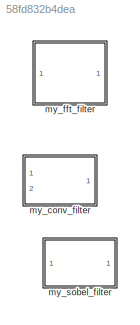
MODEL slx_58fd832b4dea
KIND library
CONFIG AbsTol = auto
CONFIG FixedStep = auto
CONFIG MaxStep = auto
CONFIG MinStep = auto
CONFIG RelTol = 1e-3
CONFIG SampleTimeConstraint = Unconstrained
CONFIG Solver = ode45
CONFIG SolverMode = Auto
CONFIG SolverName = ode45
CONFIG StartTime = 0.0
CONFIG StopTime = 10.0
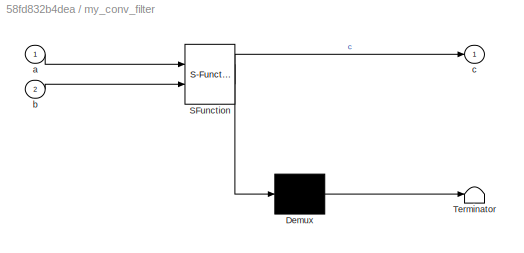
BLOCK [SubSystem] my_conv_filter
  ErrorFcn = Stateflow.Translate.translate
  PermitHierarchicalResolution = ExplicitOnly
  Ports = [2, 1]
  RequestExecContextInheritance = off
  SFBlockType = MATLAB Function
  TreatAsAtomicUnit = on
  Variant = off
BLOCK [Demux] my_conv_filter/ Demux 
  Outputs = 1
  Ports = [1, 1]
BLOCK [S-Function] my_conv_filter/ SFunction 
  EnableBusSupport = off
  FunctionName = sf_sfun
  PortCounts = [2 2]
  Ports = [2, 2]
  SFunctionDeploymentMode = off
  Tag = Stateflow S-Function my_filter_lib 1
BLOCK [Terminator] my_conv_filter/ Terminator 
BLOCK [Inport] my_conv_filter/a
  IconDisplay = Port number
BLOCK [Inport] my_conv_filter/b
  IconDisplay = Port number
  Port = 2
BLOCK [Outport] my_conv_filter/c
  IconDisplay = Port number
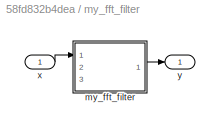
BLOCK [SubSystem] my_fft_filter
  Ports = [1, 1]
  RTWSystemCode = Reusable function
  RequestExecContextInheritance = off
  TreatAsAtomicUnit = on
  Variant = off
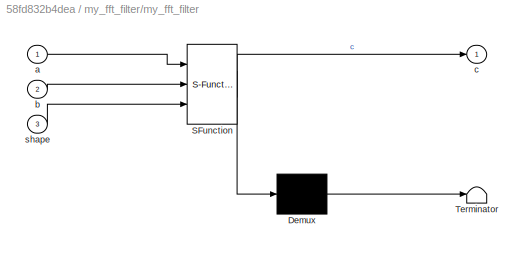
BLOCK [SubSystem] my_fft_filter/my_fft_filter
  ErrorFcn = Stateflow.Translate.translate
  PermitHierarchicalResolution = ExplicitOnly
  Ports = [3, 1]
  RequestExecContextInheritance = off
  SFBlockType = MATLAB Function
  TreatAsAtomicUnit = on
  Variant = off
BLOCK [Demux] my_fft_filter/my_fft_filter/ Demux 
  Outputs = 1
  Ports = [1, 1]
BLOCK [S-Function] my_fft_filter/my_fft_filter/ SFunction 
  EnableBusSupport = off
  FunctionName = sf_sfun
  PortCounts = [3 2]
  Ports = [3, 2]
  SFunctionDeploymentMode = off
  Tag = Stateflow S-Function my_filter_lib 2
BLOCK [Terminator] my_fft_filter/my_fft_filter/ Terminator 
BLOCK [Inport] my_fft_filter/my_fft_filter/a
  IconDisplay = Port number
BLOCK [Inport] my_fft_filter/my_fft_filter/b
  IconDisplay = Port number
  Port = 2
BLOCK [Outport] my_fft_filter/my_fft_filter/c
  IconDisplay = Port number
BLOCK [Inport] my_fft_filter/my_fft_filter/shape
  IconDisplay = Port number
  Port = 3
BLOCK [Inport] my_fft_filter/x
  IconDisplay = Port number
BLOCK [Outport] my_fft_filter/y
  IconDisplay = Port number
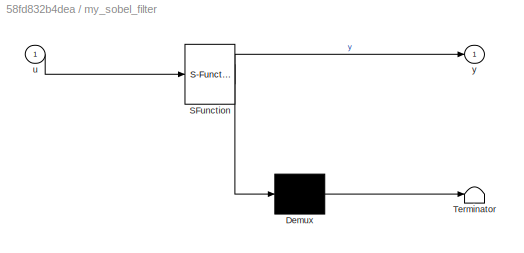
BLOCK [SubSystem] my_sobel_filter
  ErrorFcn = Stateflow.Translate.translate
  PermitHierarchicalResolution = ExplicitOnly
  Ports = [1, 1]
  RequestExecContextInheritance = off
  SFBlockType = MATLAB Function
  TreatAsAtomicUnit = on
  Variant = off
BLOCK [Demux] my_sobel_filter/ Demux 
  Outputs = 1
  Ports = [1, 1]
BLOCK [S-Function] my_sobel_filter/ SFunction 
  EnableBusSupport = off
  FunctionName = sf_sfun
  PortCounts = [1 2]
  Ports = [1, 2]
  SFunctionDeploymentMode = off
  Tag = Stateflow S-Function my_filter_lib 3
BLOCK [Terminator] my_sobel_filter/ Terminator 
BLOCK [Inport] my_sobel_filter/u
  IconDisplay = Port number
BLOCK [Outport] my_sobel_filter/y
  IconDisplay = Port number
LINE my_fft_filter/my_fft_filter:1 -> my_fft_filter/y:1
LINE my_fft_filter/x:1 -> my_fft_filter/my_fft_filter:1
CHART my_conv_filter states=1 transitions=1
  STATE_LABEL 'eML_blk_kernel()'
  STATE_LABEL 'SCRIPT:\nfunction c = my_conv(a, b)\n\nc = conv(a, b);'
CHART my_fft_filter/my_fft_filter states=1 transitions=1
  STATE_LABEL 'eML_blk_kernel()'
  STATE_LABEL "SCRIPT:\nfunction c = my_fft(a, b, shape)\nif shape == 1\n    c = conv(a, b, 'full');\nelseif shape == 2\n    c = conv(a, b, 'same');\nelse\n    c = conv(a, b, 'valid');\nend"
CHART my_sobel_filter states=1 transitions=1
  STATE_LABEL 'eML_blk_kernel()'
  STATE_LABEL 'SCRIPT:\nfunction y = my_sobel(u)\n\n%% "my_sobel_filter" is a MATLAB function\n%%  on the  MATLAB path.\ny = my_sobel_filter(u);'
